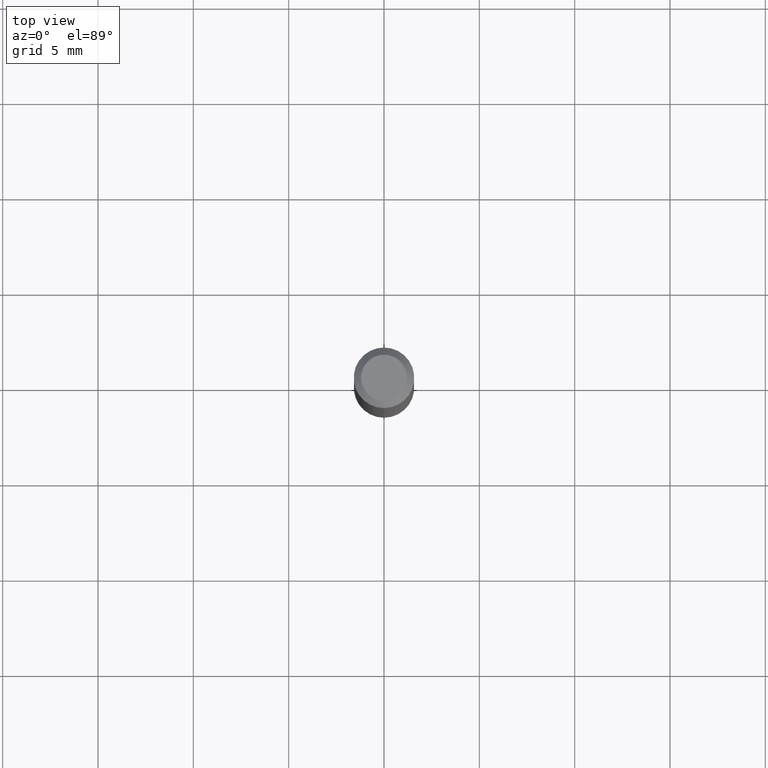
[diagram: clean part render]
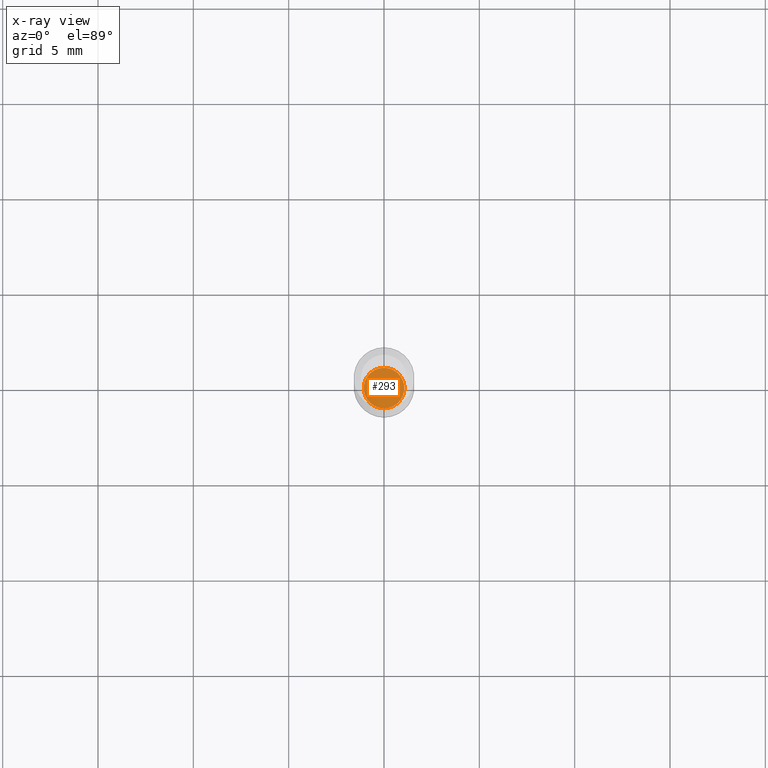
[diagram: x-ray — body ghosted, one internal face saturated and labeled with its STEP entity id]
A machine part, top view, then the same camera in x-ray: the body is ghosted and one INTERNAL B-rep face — a face not visible from any outside direction — is saturated and labeled: STEP entity #293.
In plain terms, the highlighted planar face has unit normal (-0, 0, 1).
Its self-contained STEP definition (entity closure, byte-faithful):
#15 = FACE_OUTER_BOUND ( 'NONE', #431, .T. ) ;
#21 = CARTESIAN_POINT ( 'NONE',  ( 3.002043058586724733E-16, 0.04199999999999565192, -1.245000000000000551 ) ) ;
#91 = CIRCLE ( 'NONE', #192, 0.04199999999999999567 ) ;
#106 = DIRECTION ( 'NONE',  ( -2.445524153731471341E-29, 3.491402078006607573E-15, 1.000000000000000000 ) ) ;
#136 = AXIS2_PLACEMENT_3D ( 'NONE', #302, #342, #333 ) ;
#178 = EDGE_CURVE ( 'NONE', #238, #197, #254, .T. ) ;
#181 = PLANE ( 'NONE',  #136 ) ;
#192 = AXIS2_PLACEMENT_3D ( 'NONE', #334, #361, #368 ) ;
#194 = ORIENTED_EDGE ( 'NONE', *, *, #178, .F. ) ;
#197 = VERTEX_POINT ( 'NONE', #367 ) ;
#212 = AXIS2_PLACEMENT_3D ( 'NONE', #267, #106, #497 ) ;
#223 = ORIENTED_EDGE ( 'NONE', *, *, #486, .F. ) ;
#238 = VERTEX_POINT ( 'NONE', #21 ) ;
#254 = CIRCLE ( 'NONE', #212, 0.04199999999999999567 ) ;
#267 = CARTESIAN_POINT ( 'NONE',  ( 3.044677571395682722E-29, -4.346795587118226777E-15, -1.245000000000000329 ) ) ;
#293 = ADVANCED_FACE ( 'NONE', ( #15 ), #181, .F. ) ;
#302 = CARTESIAN_POINT ( 'NONE',  ( 3.044677571395682722E-29, -4.346795587118226777E-15, -1.245000000000000329 ) ) ;
#333 = DIRECTION ( 'NONE',  ( -6.982962677686265922E-15, -1.000000000000000000, 3.491402078006607967E-15 ) ) ;
#334 = CARTESIAN_POINT ( 'NONE',  ( 3.044677571395682722E-29, -4.346795587118226777E-15, -1.245000000000000329 ) ) ;
#342 = DIRECTION ( 'NONE',  ( -2.445524153731470781E-29, 3.491402078006607967E-15, 1.000000000000000000 ) ) ;
#361 = DIRECTION ( 'NONE',  ( -2.445524153731471341E-29, 3.491402078006607573E-15, 1.000000000000000000 ) ) ;
#367 = CARTESIAN_POINT ( 'NONE',  ( -2.932844324627926808E-16, -0.04200000000000434636, -1.244999999999999885 ) ) ;
#368 = DIRECTION ( 'NONE',  ( -6.982962677686265922E-15, -1.000000000000000000, 6.504399984914913214E-15 ) ) ;
#431 = EDGE_LOOP ( 'NONE', ( #223, #194 ) ) ;
#486 = EDGE_CURVE ( 'NONE', #197, #238, #91, .T. ) ;
#497 = DIRECTION ( 'NONE',  ( -6.982962677686265922E-15, -1.000000000000000000, 6.504399984914913214E-15 ) ) ;